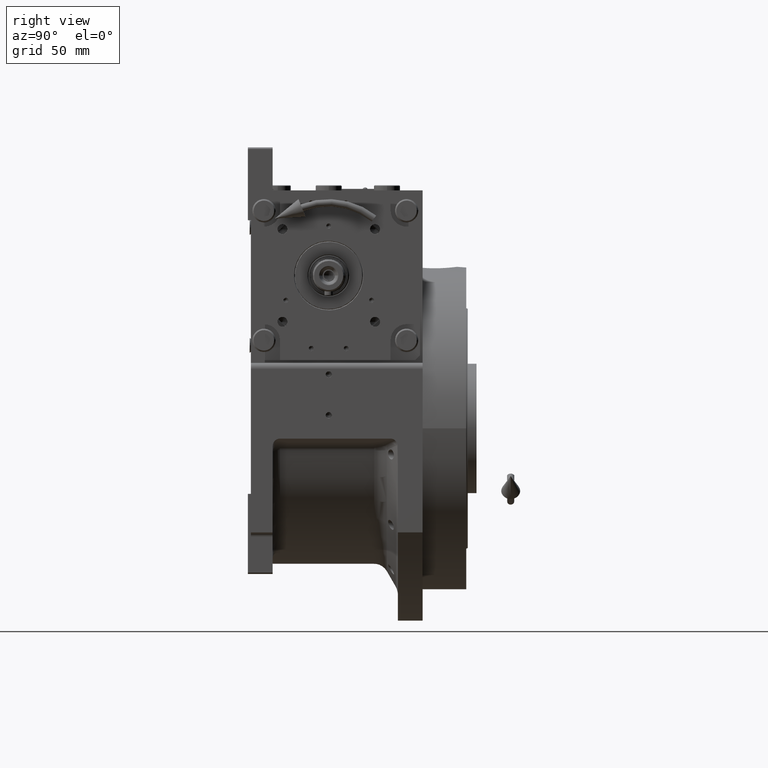
[diagram: clean part render]
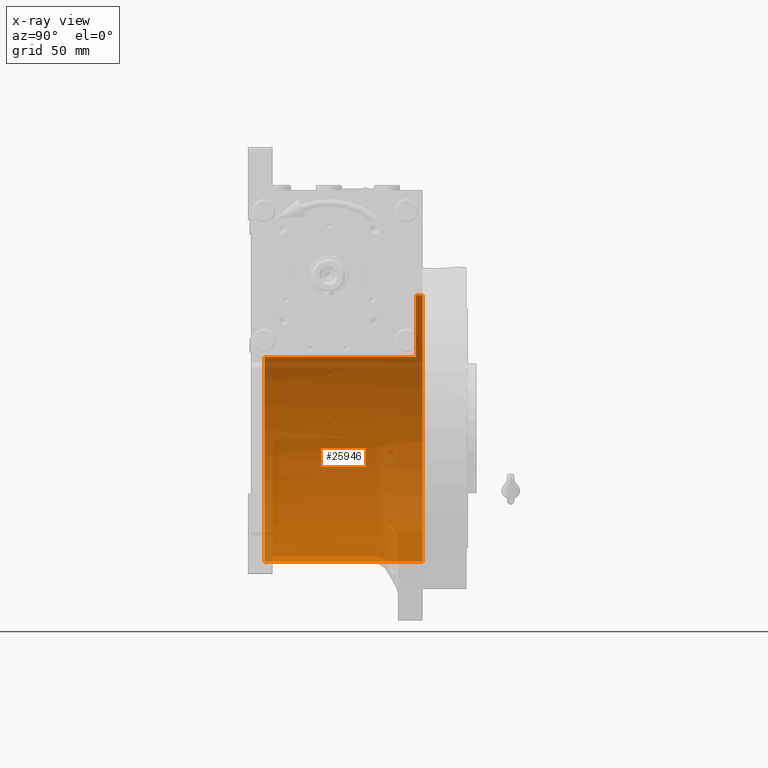
[diagram: x-ray — body ghosted, one internal face saturated and labeled with its STEP entity id]
A machine part, right view, then the same camera in x-ray: the body is ghosted and one INTERNAL B-rep face — a face not visible from any outside direction — is saturated and labeled: STEP entity #25946.
In plain terms, the highlighted cylindrical surface (partial cylindrical patch) has radius 91.5 mm, axis along (0, -1, 0).
Its self-contained STEP definition (entity closure, byte-faithful):
#1880 = VERTEX_POINT ( 'NONE', #65126 ) ;
#4335 = EDGE_CURVE ( 'NONE', #48988, #62328, #46484, .T. ) ;
#4413 = CARTESIAN_POINT ( 'NONE',  ( 0.000000000000000000, -44.00000000000000000, 0.000000000000000000 ) ) ;
#5561 = DIRECTION ( 'NONE',  ( 0.000000000000000000, 1.000000000000000000, 0.000000000000000000 ) ) ;
#6447 = EDGE_CURVE ( 'NONE', #20240, #62328, #13243, .T. ) ;
#6944 = CARTESIAN_POINT ( 'NONE',  ( 0.000000000000000000, 69.00000000000004263, 0.000000000000000000 ) ) ;
#7665 = ORIENTED_EDGE ( 'NONE', *, *, #4335, .F. ) ;
#8109 = CARTESIAN_POINT ( 'NONE',  ( 1.120551821219827868E-14, 69.00000000000004263, 91.50000000000000000 ) ) ;
#8721 = LINE ( 'NONE', #13183, #36645 ) ;
#10377 = VERTEX_POINT ( 'NONE', #52627 ) ;
#10520 = ORIENTED_EDGE ( 'NONE', *, *, #39867, .F. ) ;
#10955 = EDGE_CURVE ( 'NONE', #55546, #10377, #8721, .T. ) ;
#11537 = AXIS2_PLACEMENT_3D ( 'NONE', #46440, #62148, #15622 ) ;
#13183 = CARTESIAN_POINT ( 'NONE',  ( 0.000000000000000000, 69.00000000000004263, -91.50000000000000000 ) ) ;
#13243 = LINE ( 'NONE', #8109, #40026 ) ;
#13914 = DIRECTION ( 'NONE',  ( 1.776356839400250465E-15, 0.000000000000000000, -1.000000000000000000 ) ) ;
#14764 = ORIENTED_EDGE ( 'NONE', *, *, #41642, .F. ) ;
#15622 = DIRECTION ( 'NONE',  ( 0.000000000000000000, 0.000000000000000000, 1.000000000000000000 ) ) ;
#18112 = AXIS2_PLACEMENT_3D ( 'NONE', #40251, #5561, #13914 ) ;
#20240 = VERTEX_POINT ( 'NONE', #27628 ) ;
#21500 = ORIENTED_EDGE ( 'NONE', *, *, #40320, .F. ) ;
#25748 = AXIS2_PLACEMENT_3D ( 'NONE', #6944, #52801, #32656 ) ;
#25946 = ADVANCED_FACE ( 'NONE', ( #28233 ), #53809, .F. ) ;
#27357 = EDGE_LOOP ( 'NONE', ( #14764, #54613, #7665, #21500, #10520, #37390 ) ) ;
#27628 = CARTESIAN_POINT ( 'NONE',  ( 1.120551821219827868E-14, 64.50000000000000000, 91.50000000000000000 ) ) ;
#28233 = FACE_OUTER_BOUND ( 'NONE', #27357, .T. ) ;
#30090 = CARTESIAN_POINT ( 'NONE',  ( 0.000000000000000000, 64.50000000000000000, -91.50000000000000000 ) ) ;
#32656 = DIRECTION ( 'NONE',  ( 0.000000000000000000, 0.000000000000000000, -1.000000000000000000 ) ) ;
#33258 = AXIS2_PLACEMENT_3D ( 'NONE', #4413, #56743, #41368 ) ;
#36538 = CIRCLE ( 'NONE', #33258, 91.50000000000000000 ) ;
#36645 = VECTOR ( 'NONE', #38889, 1000.000000000000000 ) ;
#37309 = CARTESIAN_POINT ( 'NONE',  ( 1.120551821219827868E-14, 60.00000000000000000, 91.50000000000000000 ) ) ;
#37390 = ORIENTED_EDGE ( 'NONE', *, *, #10955, .F. ) ;
#38889 = DIRECTION ( 'NONE',  ( 0.000000000000000000, -1.000000000000000000, 0.000000000000000000 ) ) ;
#39867 = EDGE_CURVE ( 'NONE', #10377, #1880, #36538, .T. ) ;
#40026 = VECTOR ( 'NONE', #61127, 1000.000000000000000 ) ;
#40251 = CARTESIAN_POINT ( 'NONE',  ( 0.000000000000000000, 60.00000000000000000, 0.000000000000000000 ) ) ;
#40320 = EDGE_CURVE ( 'NONE', #1880, #48988, #55987, .T. ) ;
#40965 = VECTOR ( 'NONE', #57336, 1000.000000000000000 ) ;
#41293 = CARTESIAN_POINT ( 'NONE',  ( -77.27386362800812947, 69.00000000000004263, 48.99999999999998579 ) ) ;
#41368 = DIRECTION ( 'NONE',  ( 0.000000000000000000, 0.000000000000000000, 1.000000000000000000 ) ) ;
#41642 = EDGE_CURVE ( 'NONE', #20240, #55546, #66198, .T. ) ;
#46440 = CARTESIAN_POINT ( 'NONE',  ( 0.000000000000000000, 64.50000000000000000, 0.000000000000000000 ) ) ;
#46484 = CIRCLE ( 'NONE', #18112, 91.50000000000000000 ) ;
#48988 = VERTEX_POINT ( 'NONE', #57520 ) ;
#52627 = CARTESIAN_POINT ( 'NONE',  ( 0.000000000000000000, -44.00000000000000000, -91.50000000000000000 ) ) ;
#52801 = DIRECTION ( 'NONE',  ( 0.000000000000000000, -1.000000000000000000, 0.000000000000000000 ) ) ;
#53809 = CYLINDRICAL_SURFACE ( 'NONE', #25748, 91.50000000000000000 ) ;
#54613 = ORIENTED_EDGE ( 'NONE', *, *, #6447, .T. ) ;
#55546 = VERTEX_POINT ( 'NONE', #30090 ) ;
#55987 = LINE ( 'NONE', #41293, #40965 ) ;
#56743 = DIRECTION ( 'NONE',  ( 0.000000000000000000, 1.000000000000000000, 0.000000000000000000 ) ) ;
#57336 = DIRECTION ( 'NONE',  ( -0.000000000000000000, 1.000000000000000000, -0.000000000000000000 ) ) ;
#57520 = CARTESIAN_POINT ( 'NONE',  ( -77.27386362800814368, 60.00000000000000000, 48.99999999999998579 ) ) ;
#61127 = DIRECTION ( 'NONE',  ( 0.000000000000000000, -1.000000000000000000, 0.000000000000000000 ) ) ;
#62148 = DIRECTION ( 'NONE',  ( -0.000000000000000000, -1.000000000000000000, -0.000000000000000000 ) ) ;
#62328 = VERTEX_POINT ( 'NONE', #37309 ) ;
#65126 = CARTESIAN_POINT ( 'NONE',  ( -77.27386362800814368, -44.00000000000000000, 49.00000000000000000 ) ) ;
#66198 = CIRCLE ( 'NONE', #11537, 91.50000000000000000 ) ;